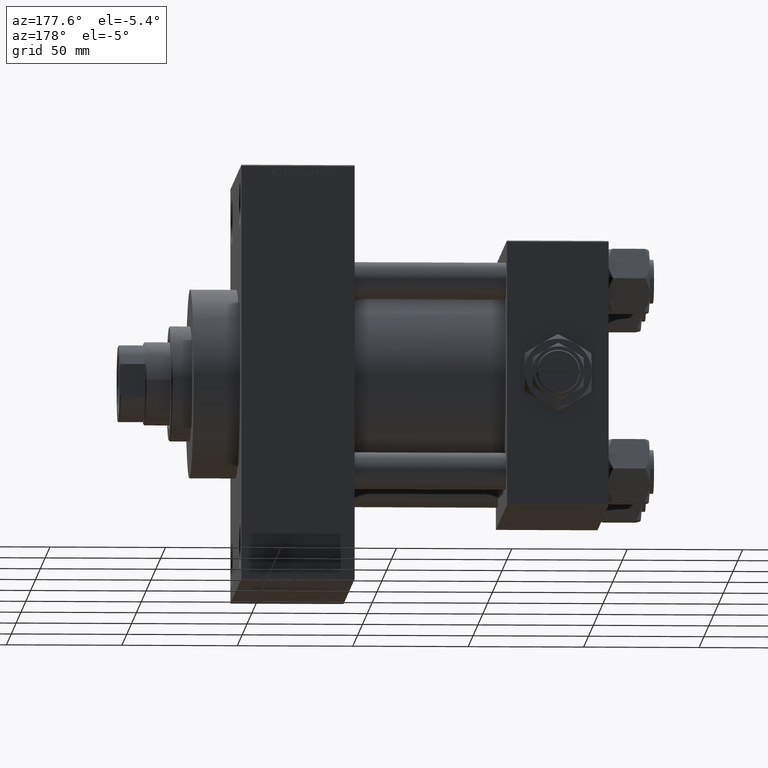
[diagram: clean part render]
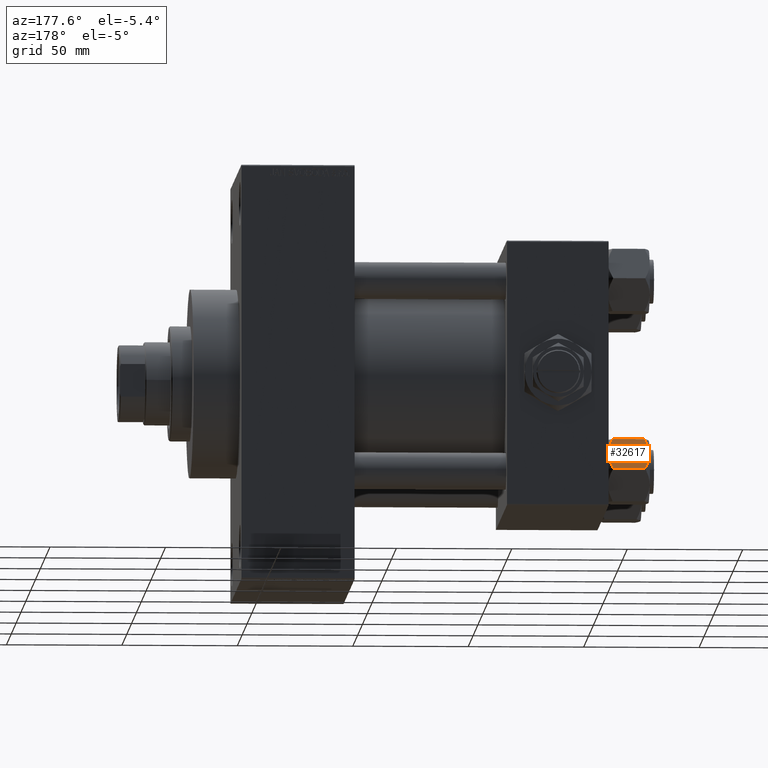
[diagram: same view with one face highlighted and labeled with its STEP entity id]
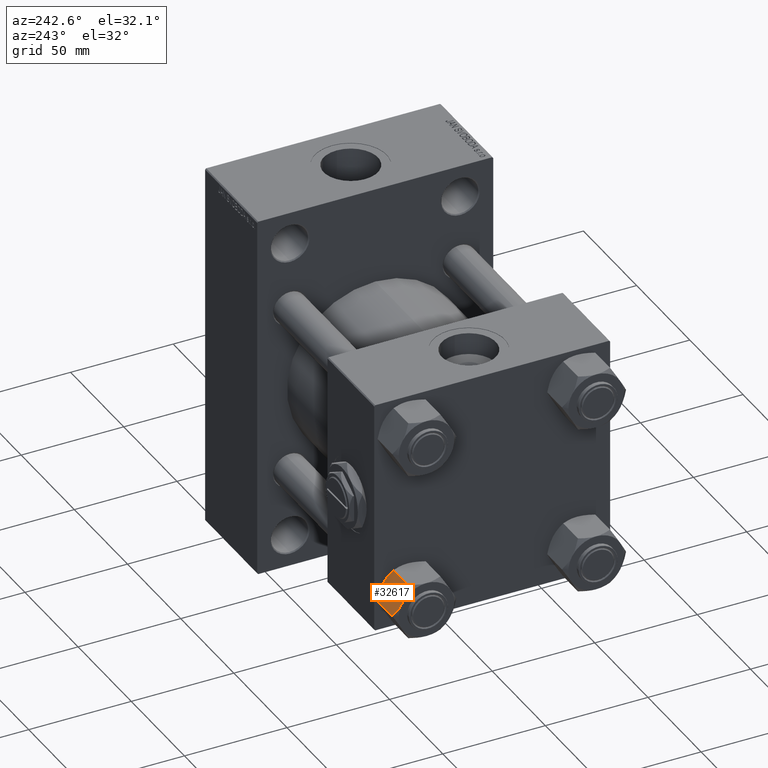
[diagram: same view with one face highlighted and labeled with its STEP entity id]
A machine part, auxiliary view. The second image highlights one B-rep face of the part: STEP entity #32617.
A second angle (auxiliary view) of the same face is appended — the face is thin or edge-on in the first view.
In plain terms, the highlighted planar face has unit normal (0, -0.866, -0.5).
Its self-contained STEP definition (entity closure, byte-faithful):
#286 = CARTESIAN_POINT ( 'NONE',  ( -7.903528262322672582, 13.36532110482643354, -16.00000000000000000 ) ) ;
#1969 = ORIENTED_EDGE ( 'NONE', *, *, #41486, .F. ) ;
#2126 = AXIS2_PLACEMENT_3D ( 'NONE', #11483, #25762, #11224 ) ;
#2471 = LINE ( 'NONE', #25514, #19349 ) ;
#2654 = CARTESIAN_POINT ( 'NONE',  ( -15.61999999999999567, 8.023367828467702033E-15, -1.999999999999998224 ) ) ;
#3061 = VERTEX_POINT ( 'NONE', #32242 ) ;
#3179 = ORIENTED_EDGE ( 'NONE', *, *, #6309, .F. ) ;
#3293 = VECTOR ( 'NONE', #18190, 1000.000000000000000 ) ;
#3567 = CARTESIAN_POINT ( 'NONE',  ( -9.114548888011780647, 11.26777185211904353, -0.9142282604026925608 ) ) ;
#4989 = VECTOR ( 'NONE', #48431, 999.9999999999998863 ) ;
#5187 = EDGE_CURVE ( 'NONE', #3061, #22167, #34145, .T. ) ;
#5981 = CARTESIAN_POINT ( 'NONE',  ( -11.71500000000000341, 6.763658403556467746, -18.00000000000000000 ) ) ;
#6309 = EDGE_CURVE ( 'NONE', #23756, #10542, #25863, .T. ) ;
#6663 = LINE ( 'NONE', #21945, #3293 ) ;
#6969 = CARTESIAN_POINT ( 'NONE',  ( -14.92760668674625713, 1.199260397376444409, -16.58801072835993295 ) ) ;
#7392 = ORIENTED_EDGE ( 'NONE', *, *, #5187, .F. ) ;
#7573 = CARTESIAN_POINT ( 'NONE',  ( -11.04378428799594758, 7.926238119586002995, -0.05089381635301037932 ) ) ;
#8042 = CARTESIAN_POINT ( 'NONE',  ( -8.202637790192643052, 12.84724820552771263, -16.29368822085855584 ) ) ;
#8297 = CARTESIAN_POINT ( 'NONE',  ( -11.71500000000000341, 6.763658403556467746, -18.00000000000000000 ) ) ;
#8742 = EDGE_CURVE ( 'NONE', #18751, #23466, #44128, .T. ) ;
#9043 = EDGE_CURVE ( 'NONE', #46137, #25823, #6663, .T. ) ;
#10188 = LINE ( 'NONE', #17966, #4989 ) ;
#10542 = VERTEX_POINT ( 'NONE', #16005 ) ;
#10730 = CARTESIAN_POINT ( 'NONE',  ( -15.52647173767732802, 0.1619957022864961793, -16.00000000000000000 ) ) ;
#10903 = DIRECTION ( 'NONE',  ( 0.4999999999999999445, 0.8660254037844387076, 0.000000000000000000 ) ) ;
#11224 = DIRECTION ( 'NONE',  ( 0.4999999999999998890, 0.8660254037844385966, 0.000000000000000000 ) ) ;
#11483 = CARTESIAN_POINT ( 'NONE',  ( -15.61999999999999567, 8.023367828467702033E-15, -18.00000000000000000 ) ) ;
#11561 = CARTESIAN_POINT ( 'NONE',  ( -9.439480280627259745, 10.70497417113493022, -17.26828031537189290 ) ) ;
#12088 = ORIENTED_EDGE ( 'NONE', *, *, #38646, .F. ) ;
#12132 = CARTESIAN_POINT ( 'NONE',  ( -15.61999999999999567, 8.023367828467702033E-15, -16.00000000000000000 ) ) ;
#15386 = B_SPLINE_CURVE_WITH_KNOTS ( 'NONE', 3,
 ( #8297, #42286, #34819, #11561, #46781, #23062, #8042, #286 ),
 .UNSPECIFIED., .F., .F.,
 ( 4, 2, 2, 4 ),
 ( 0.007890825462474436100, 0.01181022244528555365, 0.01376992093669111156, 0.01572961942809666946 ),
 .UNSPECIFIED. ) ;
#16005 = CARTESIAN_POINT ( 'NONE',  ( -11.71500000000000341, 6.763658403556467746, 0.000000000000000000 ) ) ;
#16366 = CARTESIAN_POINT ( 'NONE',  ( -13.02784502466562522, 4.489744118371585380, -0.1971866459924509485 ) ) ;
#17573 = VECTOR ( 'NONE', #26396, 999.9999999999998863 ) ;
#17966 = CARTESIAN_POINT ( 'NONE',  ( -15.61999999999999567, 8.023367828467702033E-15, -1.999999999999998224 ) ) ;
#18190 = DIRECTION ( 'NONE',  ( -0.000000000000000000, -0.000000000000000000, 1.000000000000000000 ) ) ;
#18751 = VERTEX_POINT ( 'NONE', #18960 ) ;
#18960 = CARTESIAN_POINT ( 'NONE',  ( -15.52647173767732802, 0.1619957022864961793, -16.00000000000000000 ) ) ;
#19015 = CARTESIAN_POINT ( 'NONE',  ( -7.809999999999996945, 13.52731680711293727, -18.00000000000000000 ) ) ;
#19264 = LINE ( 'NONE', #19015, #22320 ) ;
#19349 = VECTOR ( 'NONE', #47984, 999.9999999999998863 ) ;
#19876 = CARTESIAN_POINT ( 'NONE',  ( -14.30591678195076177, 2.276058899034892224, -0.9473872146228117241 ) ) ;
#21082 = ORIENTED_EDGE ( 'NONE', *, *, #9043, .T. ) ;
#21389 = CARTESIAN_POINT ( 'NONE',  ( -7.809999999999996945, 13.52731680711293727, -16.00000000000000000 ) ) ;
#21510 = CARTESIAN_POINT ( 'NONE',  ( -13.04337073483128329, 4.462852799541079385, -17.75691532989870325 ) ) ;
#21628 = VERTEX_POINT ( 'NONE', #45702 ) ;
#21945 = CARTESIAN_POINT ( 'NONE',  ( -15.61999999999999567, 8.023367828467702033E-15, -18.00000000000000000 ) ) ;
#22009 = CARTESIAN_POINT ( 'NONE',  ( -14.31545111198821374, 2.259544954993889299, -17.08577173959730544 ) ) ;
#22167 = VERTEX_POINT ( 'NONE', #21389 ) ;
#22320 = VECTOR ( 'NONE', #22507, 1000.000000000000000 ) ;
#22507 = DIRECTION ( 'NONE',  ( -0.000000000000000000, -0.000000000000000000, 1.000000000000000000 ) ) ;
#23062 = CARTESIAN_POINT ( 'NONE',  ( -8.506059550806615022, 12.32170630002230638, -16.56553707812499354 ) ) ;
#23092 = CARTESIAN_POINT ( 'NONE',  ( -10.06459418565412278, 9.622245127110613083, -0.3836066851120565890 ) ) ;
#23466 = VERTEX_POINT ( 'NONE', #35524 ) ;
#23756 = VERTEX_POINT ( 'NONE', #27217 ) ;
#25514 = CARTESIAN_POINT ( 'NONE',  ( -15.61999999999999567, 8.023367828467702033E-15, -1.999999999999998224 ) ) ;
#25762 = DIRECTION ( 'NONE',  ( 0.8660254037844387076, -0.4999999999999999445, 0.000000000000000000 ) ) ;
#25823 = VERTEX_POINT ( 'NONE', #2654 ) ;
#25863 = B_SPLINE_CURVE_WITH_KNOTS ( 'NONE', 3,
 ( #30339, #45560, #3567, #23092, #38827, #7573, #30100, #42570 ),
 .UNSPECIFIED., .F., .F.,
 ( 4, 2, 2, 4 ),
 ( 4.472842641835287214E-07, 0.003945636373369305720, 0.005918230917921867007, 0.007890825462474429161 ),
 .UNSPECIFIED. ) ;
#26242 = CARTESIAN_POINT ( 'NONE',  ( -12.38621571200405569, 5.601078687526927169, -17.94910618364698252 ) ) ;
#26396 = DIRECTION ( 'NONE',  ( 0.4999999999999999445, 0.8660254037844387076, 0.000000000000000000 ) ) ;
#26479 = EDGE_LOOP ( 'NONE', ( #44473, #21082, #1969, #45399, #3179, #27994, #12088, #7392, #29469, #43069 ) ) ;
#27217 = CARTESIAN_POINT ( 'NONE',  ( -7.903528262322672582, 13.36532110482643354, -2.000000000000000000 ) ) ;
#27994 = ORIENTED_EDGE ( 'NONE', *, *, #40289, .F. ) ;
#29469 = ORIENTED_EDGE ( 'NONE', *, *, #34649, .F. ) ;
#29678 = LINE ( 'NONE', #36677, #48150 ) ;
#30100 = CARTESIAN_POINT ( 'NONE',  ( -11.38181071908714515, 7.340759166634869715, 4.331726492258492723E-15 ) ) ;
#30243 = FACE_OUTER_BOUND ( 'NONE', #26479, .T. ) ;
#30339 = CARTESIAN_POINT ( 'NONE',  ( -7.903528262322672582, 13.36532110482643354, -2.000000000000000000 ) ) ;
#31091 = CARTESIAN_POINT ( 'NONE',  ( -7.809999999999996945, 13.52731680711293727, -1.999999999999998224 ) ) ;
#31117 = CARTESIAN_POINT ( 'NONE',  ( -15.22736220980736377, 0.6800686015852189792, -1.706311779141444385 ) ) ;
#32242 = CARTESIAN_POINT ( 'NONE',  ( -7.903528262322672582, 13.36532110482643354, -16.00000000000000000 ) ) ;
#32617 = ADVANCED_FACE ( 'NONE', ( #30243 ), #45463, .F. ) ;
#34145 = LINE ( 'NONE', #12132, #17573 ) ;
#34304 = EDGE_CURVE ( 'NONE', #10542, #21628, #37415, .T. ) ;
#34649 = EDGE_CURVE ( 'NONE', #23466, #3061, #15386, .T. ) ;
#34819 = CARTESIAN_POINT ( 'NONE',  ( -10.40215497533436917, 9.037572688741351001, -17.80281335400754017 ) ) ;
#34872 = CARTESIAN_POINT ( 'NONE',  ( -14.92394044919338825, 1.205610507090627781, -1.434462921875002683 ) ) ;
#35524 = CARTESIAN_POINT ( 'NONE',  ( -11.71500000000000341, 6.763658403556467746, -18.00000000000000000 ) ) ;
#36677 = CARTESIAN_POINT ( 'NONE',  ( -15.61999999999999567, 8.023367828467702033E-15, -16.00000000000000000 ) ) ;
#37415 = B_SPLINE_CURVE_WITH_KNOTS ( 'NONE', 3,
 ( #42342, #39347, #16366, #42850, #19876, #34872, #31117, #46332 ),
 .UNSPECIFIED., .F., .F.,
 ( 4, 2, 2, 4 ),
 ( 0.007890825462474429161, 0.01181022244528554845, 0.01376992093669110635, 0.01572961942809666600 ),
 .UNSPECIFIED. ) ;
#38646 = EDGE_CURVE ( 'NONE', #22167, #43473, #19264, .T. ) ;
#38827 = CARTESIAN_POINT ( 'NONE',  ( -10.38662926516871998, 9.064464007571849891, -0.2430846701012936983 ) ) ;
#39347 = CARTESIAN_POINT ( 'NONE',  ( -12.37702203890362185, 5.617002596445053619, 4.300668617525835570E-15 ) ) ;
#40289 = EDGE_CURVE ( 'NONE', #43473, #23756, #2471, .T. ) ;
#41486 = EDGE_CURVE ( 'NONE', #21628, #25823, #10188, .T. ) ;
#42286 = CARTESIAN_POINT ( 'NONE',  ( -11.05297796109637787, 7.910314210667880985, -18.00000000000000355 ) ) ;
#42342 = CARTESIAN_POINT ( 'NONE',  ( -11.71500000000000341, 6.763658403556467746, 0.000000000000000000 ) ) ;
#42570 = CARTESIAN_POINT ( 'NONE',  ( -11.71500000000000341, 6.763658403556467746, 0.000000000000000000 ) ) ;
#42850 = CARTESIAN_POINT ( 'NONE',  ( -13.99051971937273997, 2.822342635978005276, -0.7317196846281108780 ) ) ;
#43069 = ORIENTED_EDGE ( 'NONE', *, *, #8742, .F. ) ;
#43473 = VERTEX_POINT ( 'NONE', #31091 ) ;
#44128 = B_SPLINE_CURVE_WITH_KNOTS ( 'NONE', 3,
 ( #10730, #6969, #22009, #44236, #21510, #26242, #48478, #5981 ),
 .UNSPECIFIED., .F., .F.,
 ( 4, 2, 2, 4 ),
 ( 4.472842641907744530E-07, 0.003945636373369311792, 0.005918230917921873946, 0.007890825462474436100 ),
 .UNSPECIFIED. ) ;
#44173 = EDGE_CURVE ( 'NONE', #46137, #18751, #29678, .T. ) ;
#44236 = CARTESIAN_POINT ( 'NONE',  ( -13.36540581434587516, 3.905071680002318857, -17.61639331488794369 ) ) ;
#44473 = ORIENTED_EDGE ( 'NONE', *, *, #44173, .F. ) ;
#45289 = CARTESIAN_POINT ( 'NONE',  ( -15.61999999999999567, 8.023367828467702033E-15, -16.00000000000000000 ) ) ;
#45399 = ORIENTED_EDGE ( 'NONE', *, *, #34304, .F. ) ;
#45463 = PLANE ( 'NONE',  #2126 ) ;
#45560 = CARTESIAN_POINT ( 'NONE',  ( -8.502393313253749696, 12.32805640973648309, -1.411989271640067933 ) ) ;
#45702 = CARTESIAN_POINT ( 'NONE',  ( -15.52647173767732802, 0.1619957022864961793, -2.000000000000000000 ) ) ;
#46137 = VERTEX_POINT ( 'NONE', #45289 ) ;
#46332 = CARTESIAN_POINT ( 'NONE',  ( -15.52647173767732802, 0.1619957022864961793, -2.000000000000000000 ) ) ;
#46781 = CARTESIAN_POINT ( 'NONE',  ( -9.124083218049239719, 11.25125790807804194, -17.05261278537718539 ) ) ;
#47984 = DIRECTION ( 'NONE',  ( -0.4999999999999999445, -0.8660254037844387076, 0.000000000000000000 ) ) ;
#48150 = VECTOR ( 'NONE', #10903, 999.9999999999998863 ) ;
#48431 = DIRECTION ( 'NONE',  ( -0.4999999999999999445, -0.8660254037844387076, 0.000000000000000000 ) ) ;
#48478 = CARTESIAN_POINT ( 'NONE',  ( -12.04818928091285457, 6.186557640478063114, -18.00000000000000711 ) ) ;